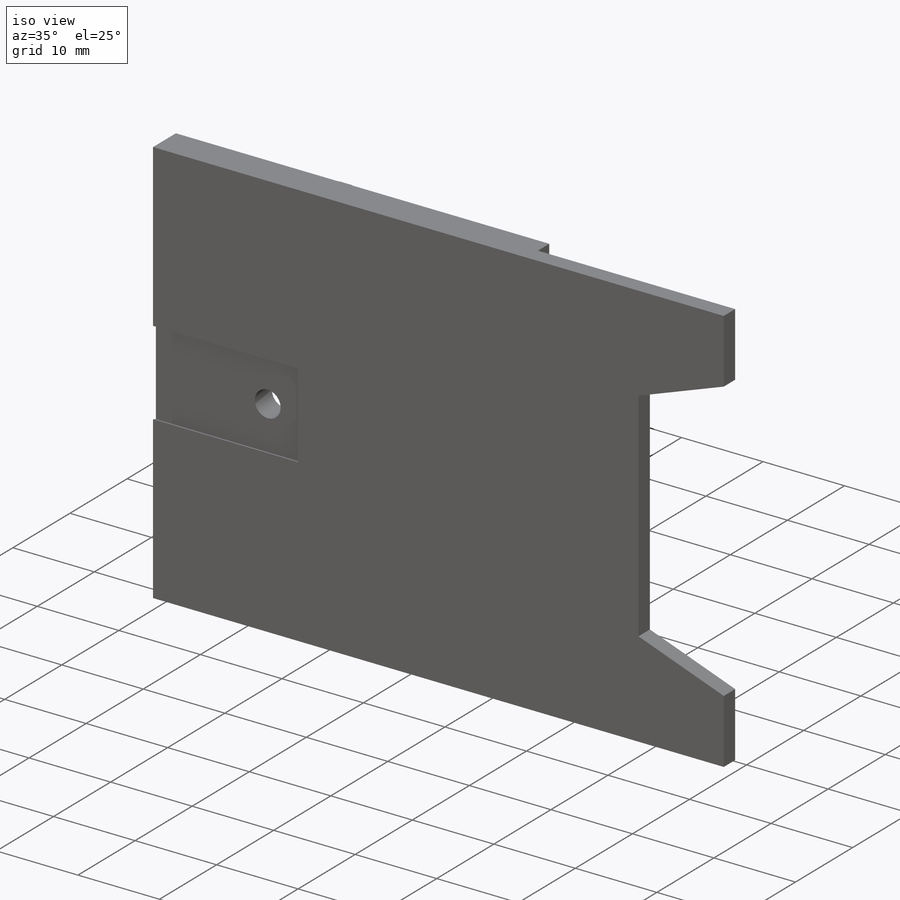
[diagram: iso view]
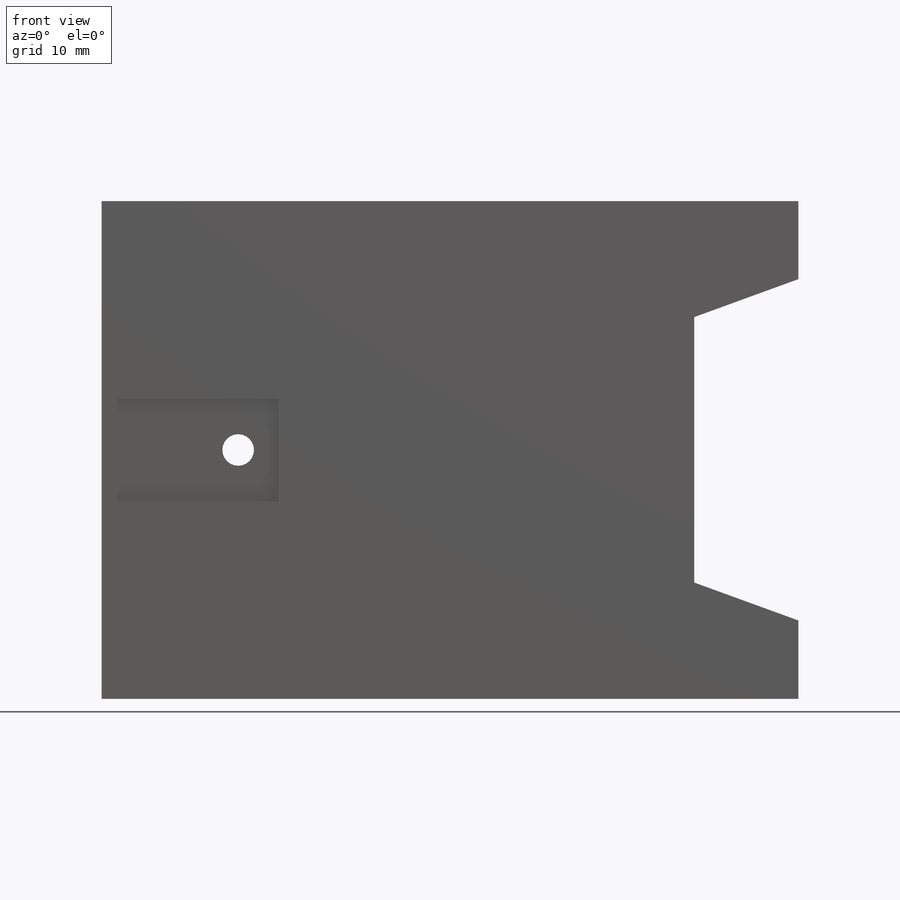
[diagram: front view]
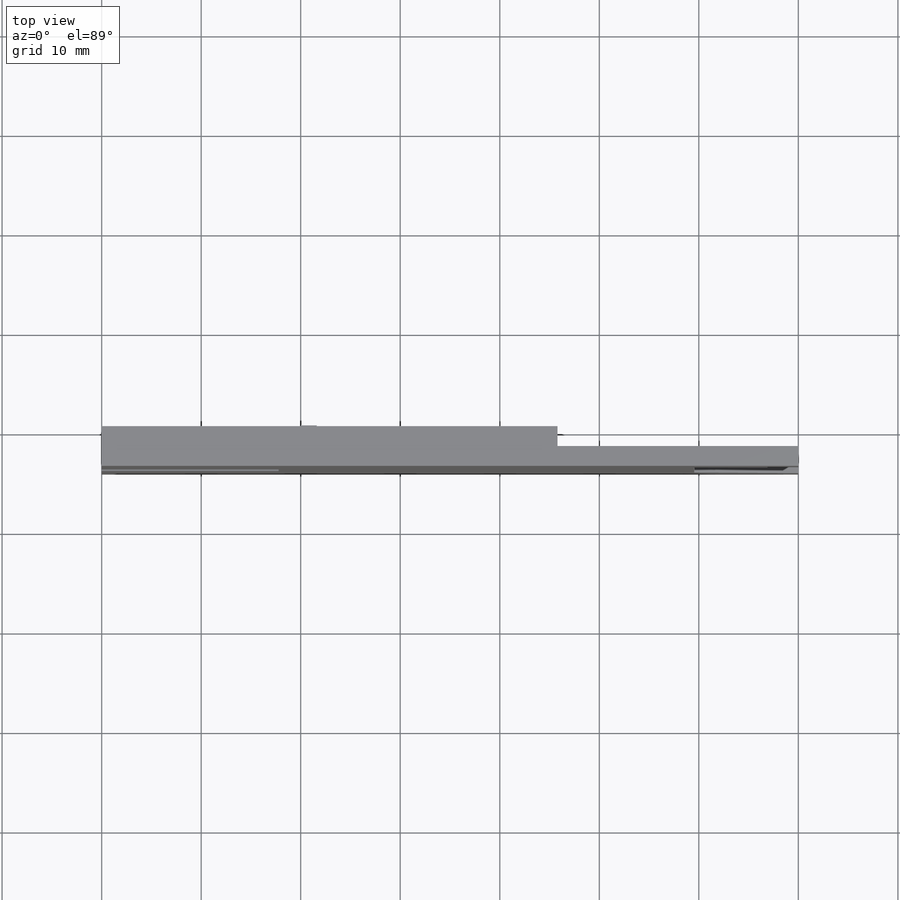
[diagram: top view]
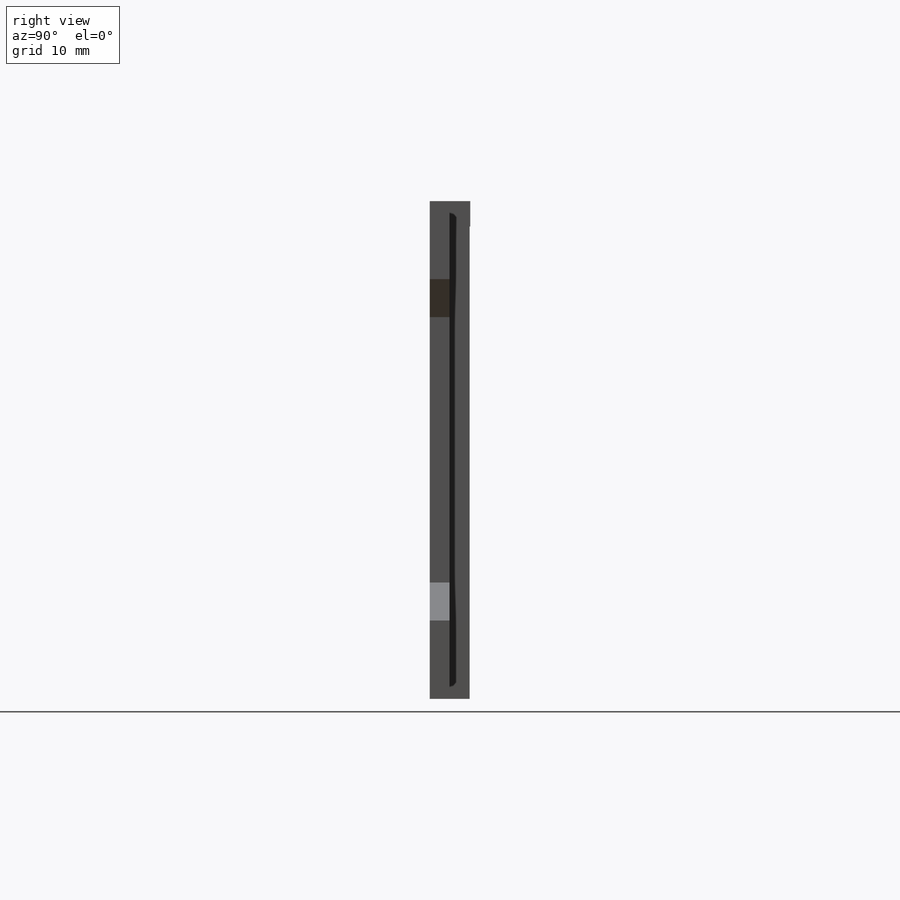
[diagram: right view]
SOLIDWORKS PART (.sldprt)
format: sldprt  version: not decoded by parser v0  size: 211,456 bytes
history: native  units: mm
features: sketch x6, plane x4, extrude x3, cut_extrude x3, material x1 (+13 scaffold rows collapsed)
feature tree (30):
  scaffold x13  (default folders/planes/origin — collapsed)
  material  "Material <not specified>"
  sketch  "Sketch2"  dims[D1=2.54mm]
  extrude  "Boss-Extrude1"  Depth=4mm
  plane  "Plane1"  Offset=0mm
  sketch  "Sketch3"
  cut_extrude  "Cut-Extrude1"  [1 undecoded]
  plane  "Plane2"  Offset=0mm
  sketch  "Sketch5"
  extrude  "Boss-Extrude2"  Depth=20mm
  plane  "Plane3"  Offset=0mm
  plane  "Plane4"  Offset=0mm
  sketch  "Sketch6"  dims[D1=1.5mm]
  cut_extrude  "Cut-Extrude2"  Depth=17.78mm
  sketch  "Sketch7"  dims[D1=4.064mm]
  cut_extrude  "Cut-Extrude3"  [1 undecoded]
  sketch  "Sketch8"
  extrude  "Boss-Extrude3"  Depth=4.064mm
decode coverage: 7 of 12 modeling features carry decoded parameters
note: 2 parameter values undecoded
note: suppression state not decoded; provenance and decode notes live in map.json
